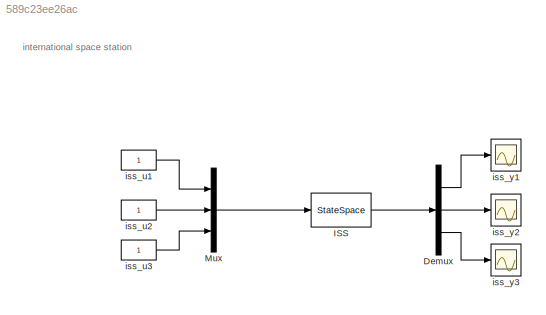
MODEL slx_589c23ee26ac
KIND model
BLOCK [Demux] Demux
  DisplayOption = bar
  Outputs = 3
  Ports = [1, 3]
BLOCK [StateSpace] ISS
  A = iss_sys.sys.a
  B = iss_sys.sys.b
  C = iss_sys.sys.c
  D = iss_sys.sys.d
  Ports = [1, 1]
  X0 = iss_sys.x0_lb
BLOCK [Mux] Mux
  DisplayOption = bar
  Inputs = 3
  Ports = [3, 1]
BLOCK [Constant] iss_u1
BLOCK [Constant] iss_u2
BLOCK [Constant] iss_u3
BLOCK [Scope] iss_y1
  Floating = off
  NumInputPorts = 1
  Ports = [1]
  ShowLegends = off
BLOCK [Scope] iss_y2
  Floating = off
  NumInputPorts = 1
  Ports = [1]
  SaveName = ScopeData1
  ShowLegends = off
BLOCK [Scope] iss_y3
  Floating = off
  NumInputPorts = 1
  Ports = [1]
  SaveName = ScopeData2
  ShowLegends = off
ANNOTATION (root): international space station
LINE Demux:1 -> iss_y1:1
LINE Demux:2 -> iss_y2:1
LINE Demux:3 -> iss_y3:1
LINE ISS:1 -> Demux:1
LINE Mux:1 -> ISS:1
LINE iss_u1:1 -> Mux:1
LINE iss_u2:1 -> Mux:2
LINE iss_u3:1 -> Mux:3
